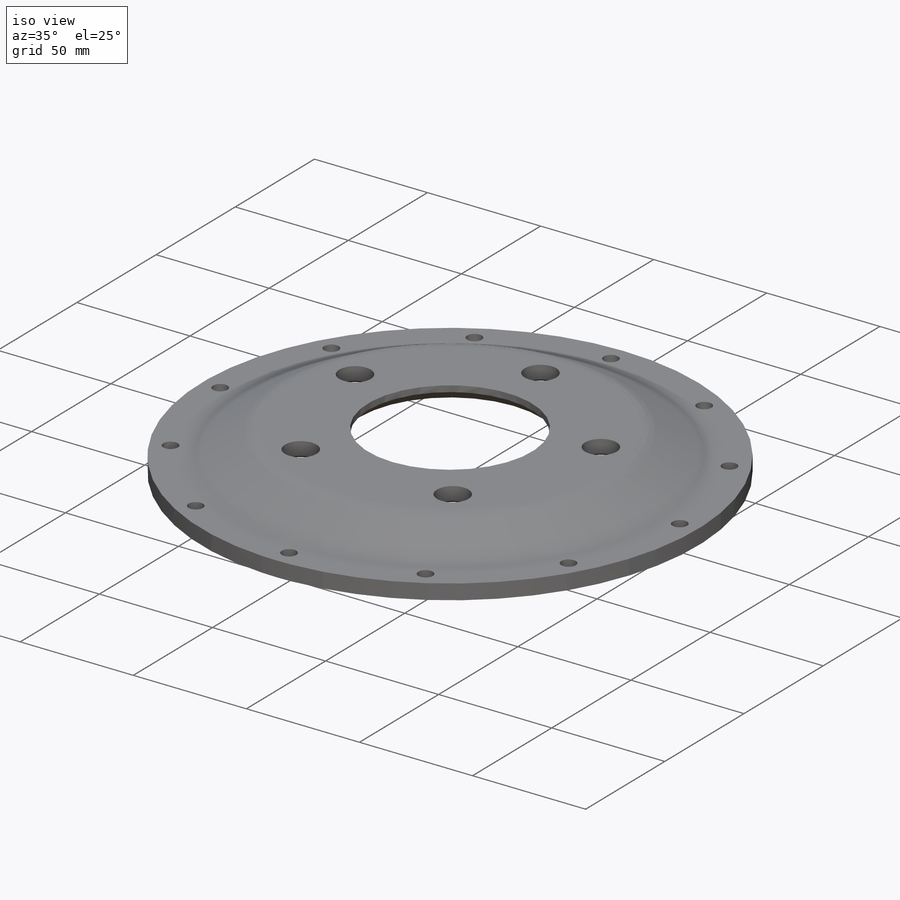
[diagram: iso view]
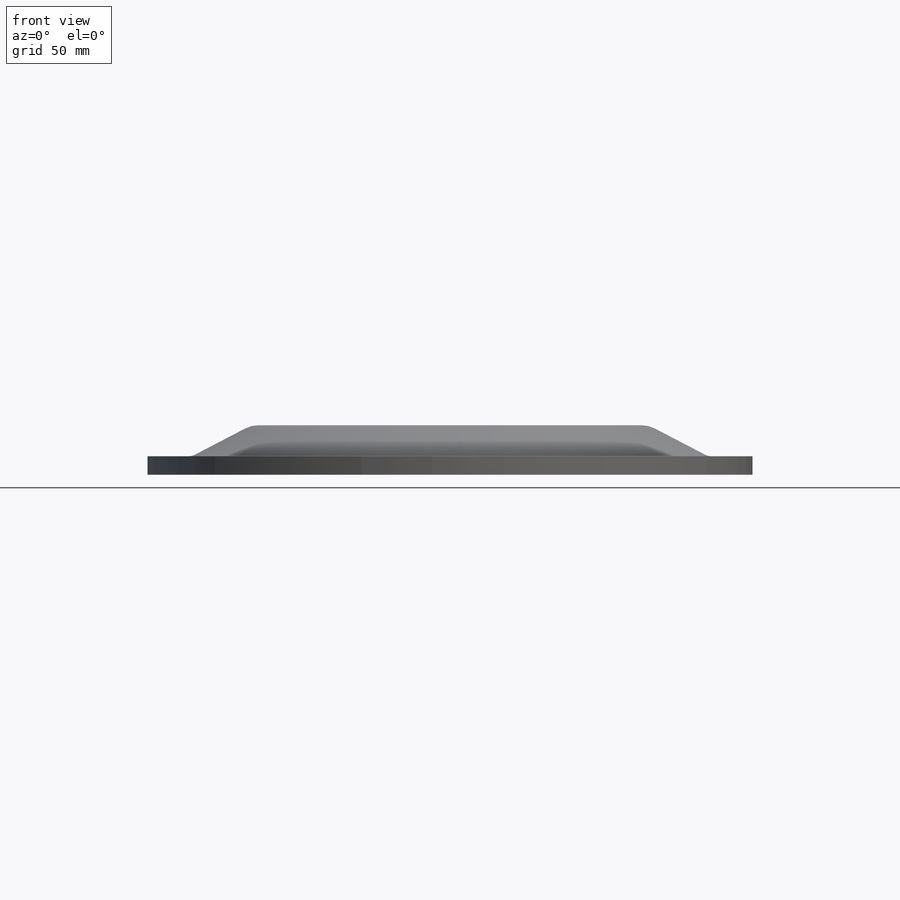
[diagram: front view]
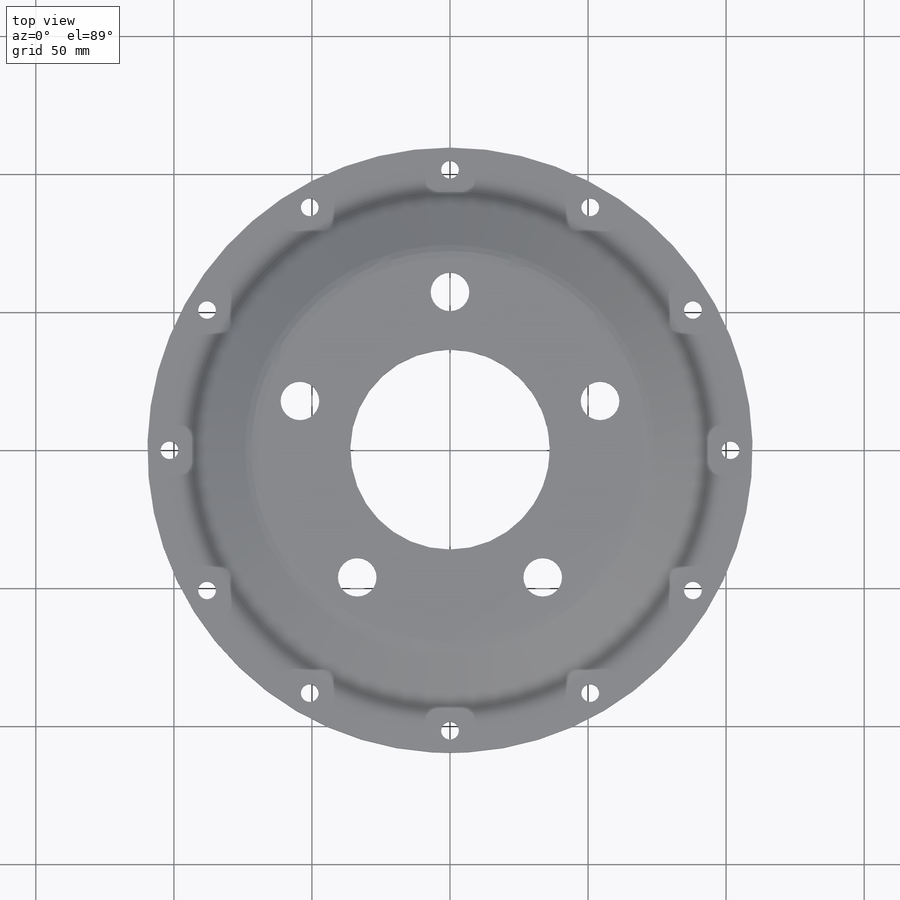
[diagram: top view]
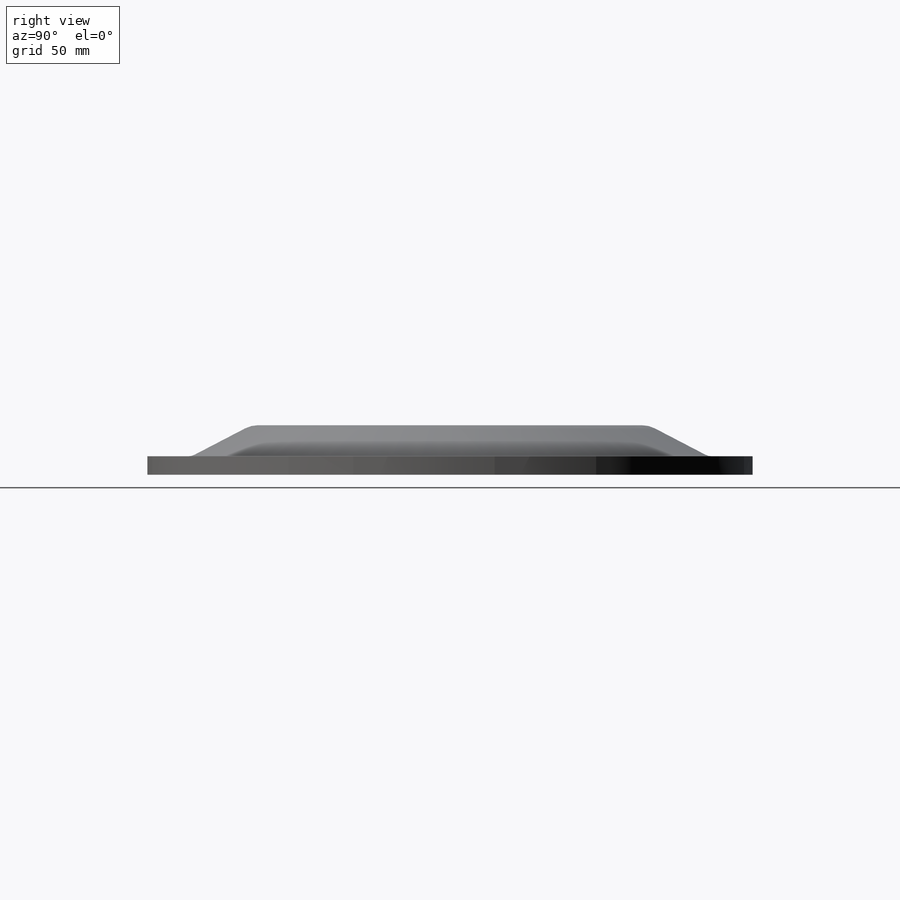
[diagram: right view]
SOLIDWORKS PART (.sldprt)
format: sldprt  version: not decoded by parser v0  size: 355,328 bytes
history: native  units: mm
features: sketch x4, fillet x4, extrude x3, chamfer x2, material x1, plane x1, sweep x1 (+12 scaffold rows collapsed)
feature tree (28):
  scaffold x12  (default folders/planes/origin — collapsed)
  material  "Material <not specified>"
  sketch  "Sketch1"  dims[c1.D1=222.0mm c1.D2=191.0mm c1.D3=177.6mm c2.D2=6.425mm c2.D7=203.0mm c2.D6=6.425mm c2.D5=177.6mm c2.D3=177.6mm c3.D5=177.6mm c3.D4=101.5mm c3.D6=101.5mm c3.D7=12.7mm c4.D4=101.6mm c4.D6=~101.586615mm c4.D5=12.8mm c4.D3=25.6mm c5.D5=23.7mm c5.D3=9.4mm c6.D5=16.0mm c6.D1=8.0mm c6.D6=12.0]
  extrude  "Boss-Extrude1"  Depth=6.7mm
  plane  "Wheel Mounting Face"  Offset=11.25mm
  sketch  "Sketch2"  dims[c1.D1=144.0mm c1.D2=72.4mm c1.D3=14.0mm c1.D6=114.3mm c1.D4=57.15mm c2.D6=~103.385321mm c2.D5=5.0]
  extrude  "Boss-Extrude3"  Depth=6.7mm
  sketch  "Sketch3"  dims[D1=~1.720536mm]
  extrude  "Surface-Fill8"  [1 undecoded]
  sketch  "Sketch4"  dims[c1.D1=~21.120606mm c2.D1=~179.570903deg c3.D1=~2.417452mm c3.D2=~7.252768mm c4.D1=6.7mm]
  sweep  "Sweep3"
  fillet  "Fillet1"  Radius=10mm
  fillet  "Fillet2"  Radius=5mm
  chamfer  "Chamfer1"  Distance=4mm Angle=45deg
  chamfer  "Chamfer2"  Distance=0.8mm Angle=45deg
  fillet  "Fillet7"  Radius=2.5mm
  fillet  "Fillet8"  Radius=2.5mm
decode coverage: 12 of 14 modeling features carry decoded parameters
note: ~ marks probable driven/reference dimensions
note: 1 parameter value undecoded
note: suppression state not decoded; provenance and decode notes live in map.json
